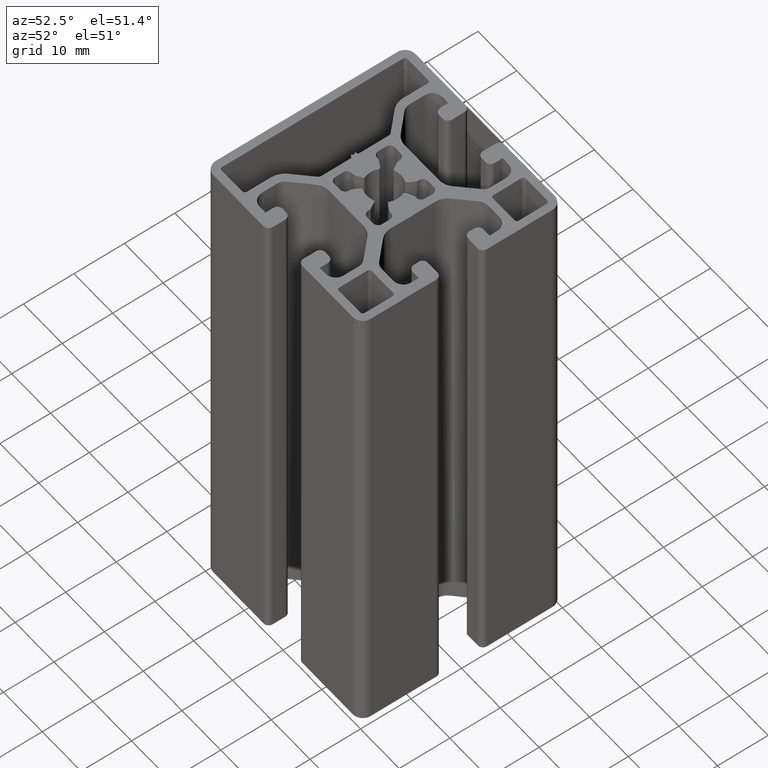
[diagram: clean part render]
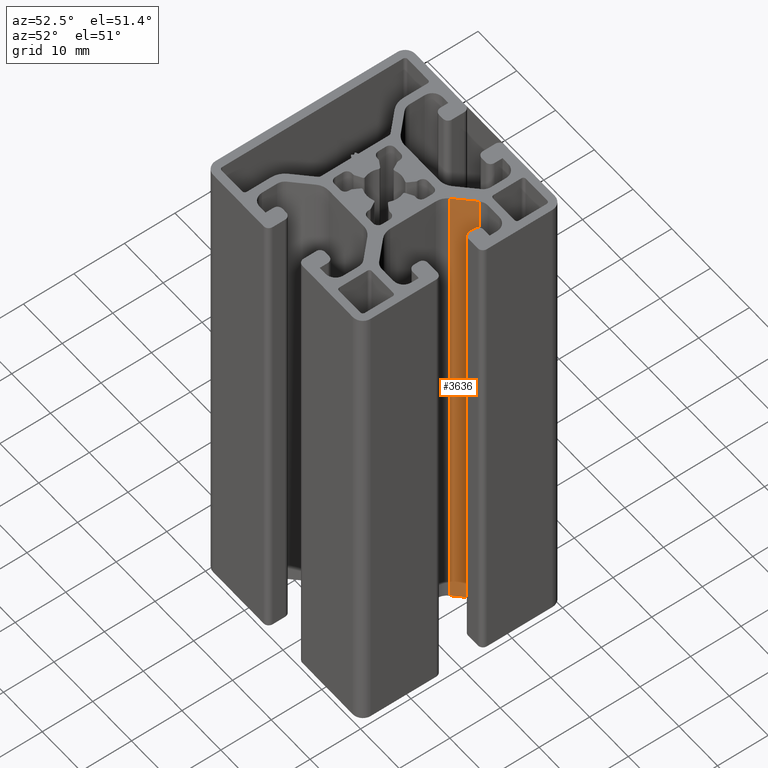
[diagram: same view with one face highlighted and labeled with its STEP entity id]
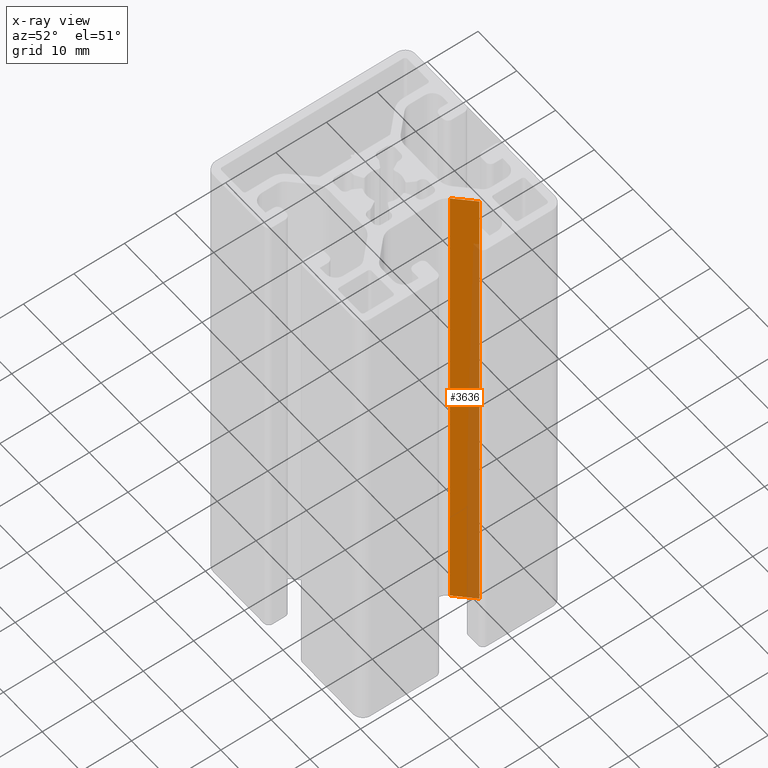
[diagram: x-ray of the same camera — body ghosted, the highlighted face saturated]
A machine part, auxiliary view. The second image highlights one B-rep face of the part: STEP entity #3636.
The next image is the same camera in x-ray: the body ghosted, the highlighted face saturated — about 32% of this face is hidden behind the body in this view.
In plain terms, the highlighted planar face has unit normal (-0.7071, 0.7071, 0).
Its self-contained STEP definition (entity closure, byte-faithful):
#101=PLANE('',#3979);
#273=FACE_OUTER_BOUND('',#456,.T.);
#456=EDGE_LOOP('',(#2925,#2926,#2927,#2928));
#803=LINE('',#6059,#1166);
#804=LINE('',#6062,#1167);
#805=LINE('',#6064,#1168);
#806=LINE('',#6065,#1169);
#1166=VECTOR('',#4966,100.);
#1167=VECTOR('',#4969,4.67157287525381);
#1168=VECTOR('',#4970,4.67157287525381);
#1169=VECTOR('',#4971,100.);
#1714=VERTEX_POINT('',#6055);
#1715=VERTEX_POINT('',#6057);
#1716=VERTEX_POINT('',#6061);
#1717=VERTEX_POINT('',#6063);
#2229=EDGE_CURVE('',#1715,#1714,#803,.T.);
#2230=EDGE_CURVE('',#1714,#1716,#804,.T.);
#2231=EDGE_CURVE('',#1717,#1715,#805,.T.);
#2232=EDGE_CURVE('',#1717,#1716,#806,.T.);
#2925=ORIENTED_EDGE('',*,*,#2230,.F.);
#2926=ORIENTED_EDGE('',*,*,#2229,.F.);
#2927=ORIENTED_EDGE('',*,*,#2231,.F.);
#2928=ORIENTED_EDGE('',*,*,#2232,.T.);
#3636=ADVANCED_FACE('',(#273),#101,.F.);
#3979=AXIS2_PLACEMENT_3D('',#6060,#4967,#4968);
#4966=DIRECTION('',(0.,0.,1.));
#4967=DIRECTION('center_axis',(-0.707106781186548,0.707106781186547,0.));
#4968=DIRECTION('ref_axis',(-0.707106781186547,-0.707106781186548,0.));
#4969=DIRECTION('',(0.707106781186547,0.707106781186548,0.));
#4970=DIRECTION('',(-0.707106781186547,-0.707106781186548,0.));
#4971=DIRECTION('',(0.,0.,1.));
#6055=CARTESIAN_POINT('',(8.37867965644034,6.61089970347399,100.));
#6057=CARTESIAN_POINT('',(8.37867965644034,6.61089970347399,0.));
#6059=CARTESIAN_POINT('',(8.37867965644034,6.61089970347399,0.));
#6060=CARTESIAN_POINT('Origin',(11.6819805153394,9.9142005623731,0.));
#6061=CARTESIAN_POINT('',(11.6819805153394,9.9142005623731,100.));
#6062=CARTESIAN_POINT('',(6.28293524591131,4.51515529294496,100.));
#6063=CARTESIAN_POINT('',(11.6819805153394,9.9142005623731,0.));
#6064=CARTESIAN_POINT('',(6.28293524591131,4.51515529294496,0.));
#6065=CARTESIAN_POINT('',(11.6819805153394,9.9142005623731,0.));